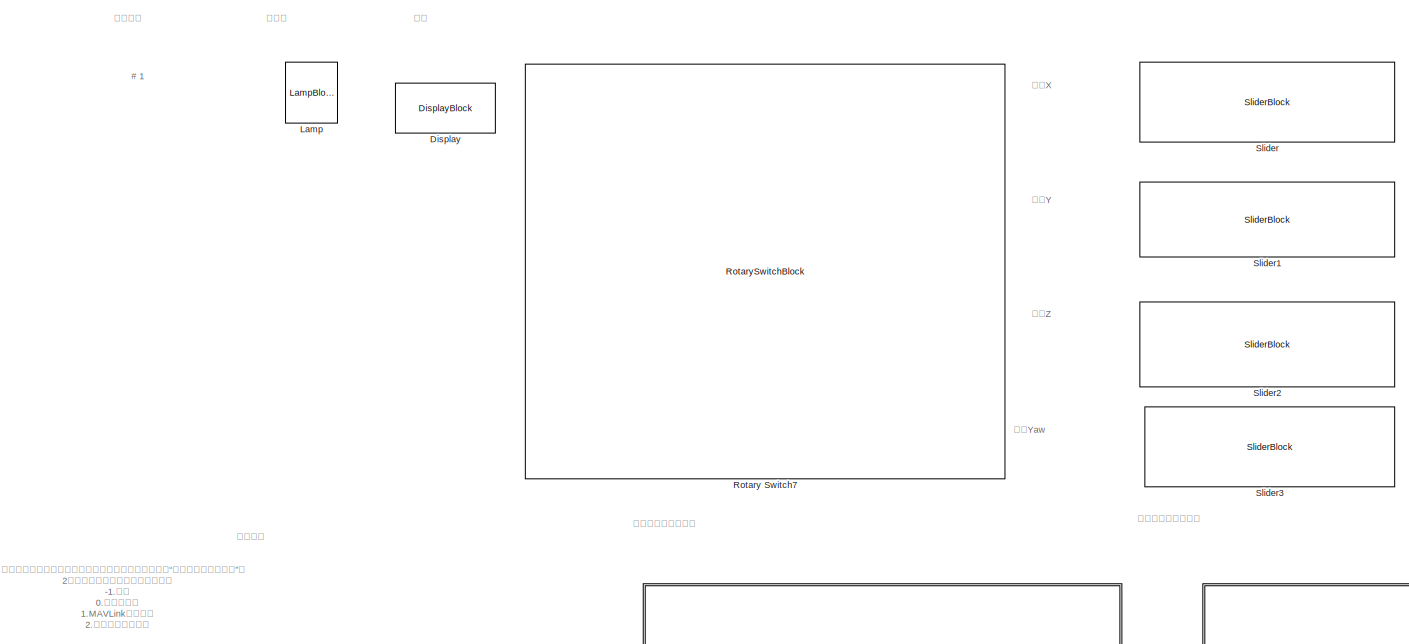
[diagram: root canvas - part 1/3, most of the canvas]
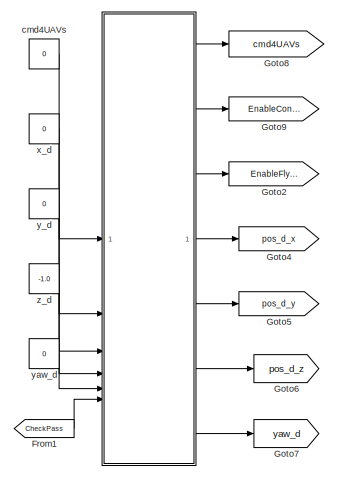
[diagram: root canvas - part 2/3, middle right region]
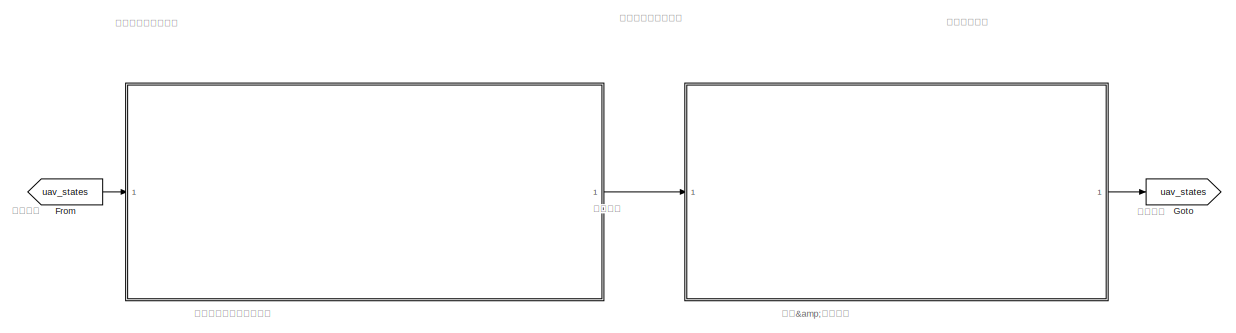
[diagram: root canvas - part 3/3, bottom center region]
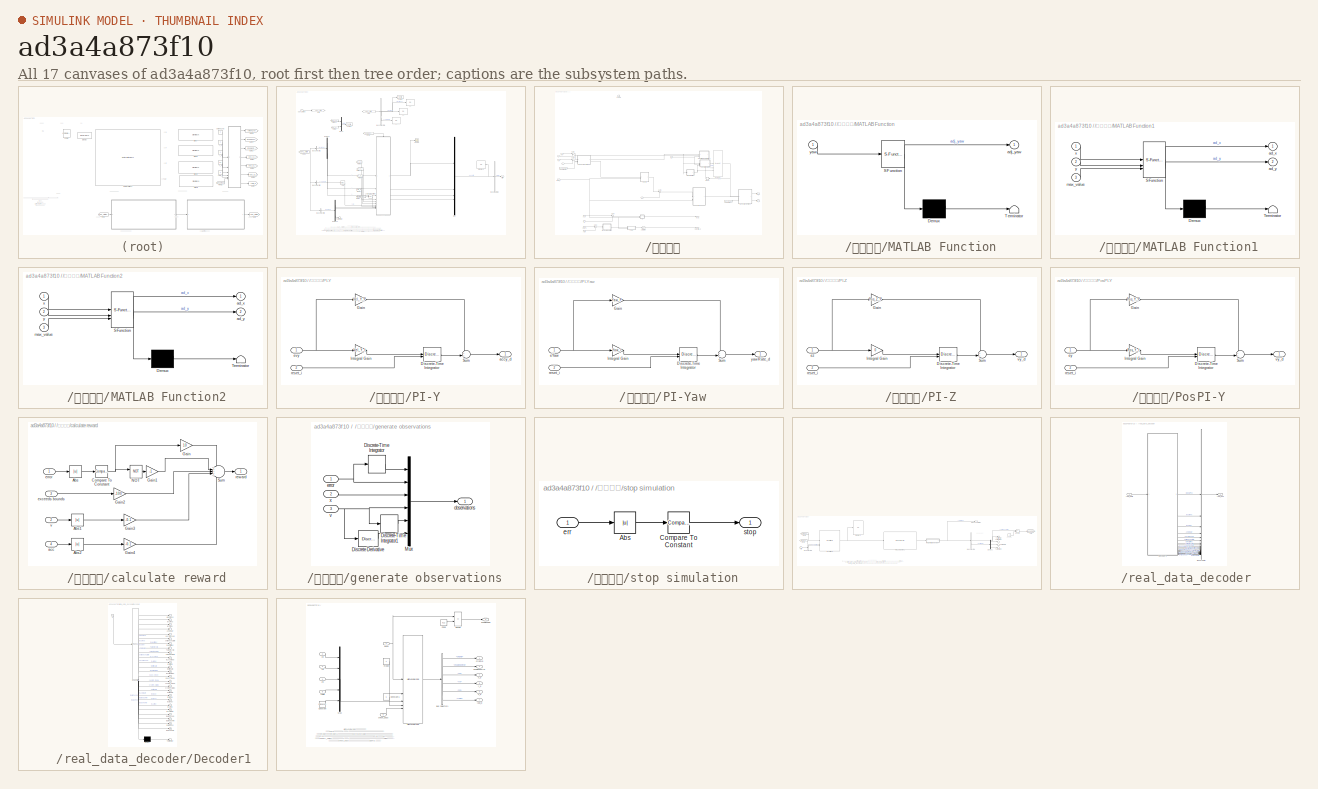
[diagram: thumbnail index - all 17 canvases of the model, root first then tree order]
MODEL slx_ad3a4a873f10
KIND model
CONFIG AbsTol = auto
CONFIG EnableMultiTasking = on
CONFIG FixedStep = fixed_step_size
CONFIG InitFcn = [filepath,name,ext] = fileparts(get_param(bdroot, 'FileName'));\nInitFileName=[name,'_init.m'];\ncd(filepath);\nopen_system(name);\n% 命令旋钮\nconstant_block_path =[name '/cmd4UAVs'];\nset_param(constant_block_path,'Value','0');\n% 滑杆位置\nconstant_block_path = [name '/x_d'];\nset_param(constant_block_path,'Value','0');\nconstant_block_path = [name '/y_d'];\nset_param(constant_block_path,'Value','0');\nconstant_bl...<+202ch>
CONFIG MaxStep = auto
CONFIG MinStep = auto
CONFIG PreLoadFcn = filepath  = fileparts(get_param(bdroot, 'FileName'))\ncd(filepath);
CONFIG RelTol = 1e-3
CONFIG SampleTimeConstraint = Unconstrained
CONFIG SolverName = ode4
CONFIG StartTime = 0.0
CONFIG StopTime = inf
BLOCK [SubSystem]  
BLOCK [SubSystem]    
  NameLocation = top
BLOCK [SubSystem]     
BLOCK [BusSelector]     /Bus Selector1
  OutputSignals = ctrlCmd,enableControl,xd,yd,zd,yawd
BLOCK [Constant]     /Constant
  Value = zeros(12,1)
BLOCK [Constant]     /Constant1
  Value = -1
BLOCK [RelationalOperator]     /Equal3
  InputSameDT = off
  Operator = ==
  OutDataTypeStr = boolean
  RndMeth = Simplest
BLOCK [Constant]     /Flying
  Value = 512
BLOCK [Reference]     /HighLevelMode  REF=pixhawk_slib_swarm/HighLevelMode
  SourceBlock = pixhawk_slib_swarm/HighLevelMode
  SourceProductName = Pixhawk Target Blocks
BLOCK [Mux]     /Mux
  DisplayOption = bar
  Inputs = 5
BLOCK [Inport]     /check_pass
  Port = 6
BLOCK [Inport]     /cmd
BLOCK [Outport]     /ctrlCmd
  VectorParamsAs1DForOutWhenUnconnected = off
BLOCK [Outport]     /enableControl
  Port = 2
  VectorParamsAs1DForOutWhenUnconnected = off
BLOCK [Outport]     /enableFlying
  Port = 3
  VectorParamsAs1DForOutWhenUnconnected = off
BLOCK [Constant]     /mode
BLOCK [Outport]     /x_d
  Port = 4
  VectorParamsAs1DForOutWhenUnconnected = off
BLOCK [Inport]     /xd
  Port = 2
BLOCK [Outport]     /y_d
  Port = 5
  VectorParamsAs1DForOutWhenUnconnected = off
BLOCK [Outport]     /yaw_d
  Port = 7
  VectorParamsAs1DForOutWhenUnconnected = off
BLOCK [Inport]     /yawd
  Port = 5
BLOCK [Inport]     /yd
  Port = 3
BLOCK [Outport]     /z_d
  Port = 6
  VectorParamsAs1DForOutWhenUnconnected = off
BLOCK [Inport]     /zd
  Port = 4
BLOCK [BusSelector]    /Bus Selector1
  OutputSignals = selfCheckState,batteryInfo
BLOCK [BusSelector]    /Bus Selector9
  OutputSignals = UAV1Ctrl
BLOCK [Demux]    /Demux1
  Outputs = 3
BLOCK [Display]    /Display5
  Decimation = 1
  Format = long
BLOCK [Outport]    /DroneyeeStates
  VectorParamsAs1DForOutWhenUnconnected = off
BLOCK [RelationalOperator]    /Equal3
  InputSameDT = off
  Operator = ==
  OutDataTypeStr = boolean
  RndMeth = Simplest
BLOCK [From]    /From3
  GotoTag = cmd4UAVs
  TagVisibility = global
BLOCK [From]    /From5
  GotoTag = EnableControl
  TagVisibility = global
BLOCK [Goto]    /Goto
  GotoTag = CheckPass
  TagVisibility = global
BLOCK [Reference]    /RealCtrl28D  REF=pixhawk_slib_swarm/RealCtrl28D
  SourceBlock = pixhawk_slib_swarm/RealCtrl28D
  SourceProductName = Pixhawk Target Blocks
BLOCK [Reference]    /RflyUdpMavlink1  REF=pixhawk_slib_swarm/RflyUdpMavlink
  SourceBlock = pixhawk_slib_swarm/RflyUdpMavlink
  SourceProductName = Pixhawk Target Blocks
  SourceType = RflyUdpReal API
BLOCK [Terminator]    /Terminator
BLOCK [Terminator]    /Terminator1
BLOCK [Terminator]    /Terminator2
BLOCK [Terminator]    /Terminator3
BLOCK [Inport]    /ctrls
BLOCK [SubSystem]    /real_data_decoder
  NameLocation = top
BLOCK [BusCreator]    /real_data_decoder/Bus Creator
  DisplayOption = bar
  InheritFromInputs = on
  Inputs = 25
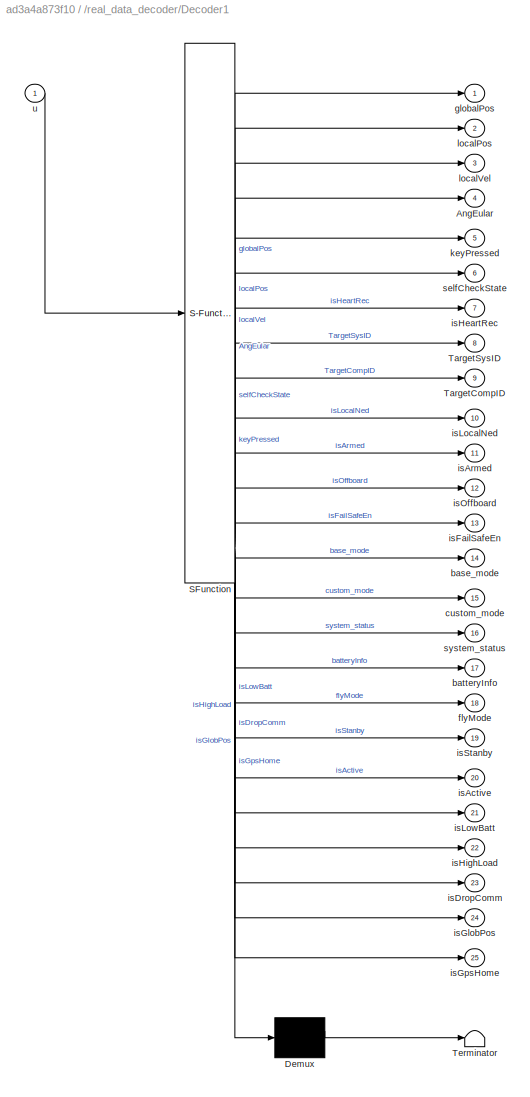
BLOCK [SubSystem]    /real_data_decoder/Decoder1
  ErrorFcn = Stateflow.Translate.translate
  PermitHierarchicalResolution = ExplicitOnly
  SFBlockType = MATLAB Function
  TreatAsAtomicUnit = on
BLOCK [Demux]    /real_data_decoder/Decoder1/ Demux 
  Outputs = 1
BLOCK [S-Function]    /real_data_decoder/Decoder1/ SFunction 
  EnableBusSupport = on
  FunctionName = sf_sfun
  PortCounts = [1 26]
  SFcnIsStateOwnerBlock = off
  SFunctionDeploymentMode = off
  Tag = Stateflow S-Function 1
BLOCK [Terminator]    /real_data_decoder/Decoder1/ Terminator 
BLOCK [Outport]    /real_data_decoder/Decoder1/AngEular
  Port = 4
  VectorParamsAs1DForOutWhenUnconnected = off
BLOCK [Outport]    /real_data_decoder/Decoder1/TargetCompID
  Port = 9
  VectorParamsAs1DForOutWhenUnconnected = off
BLOCK [Outport]    /real_data_decoder/Decoder1/TargetSysID
  Port = 8
  VectorParamsAs1DForOutWhenUnconnected = off
BLOCK [Outport]    /real_data_decoder/Decoder1/base_mode
  Port = 14
  VectorParamsAs1DForOutWhenUnconnected = off
BLOCK [Outport]    /real_data_decoder/Decoder1/batteryInfo
  Port = 17
  VectorParamsAs1DForOutWhenUnconnected = off
BLOCK [Outport]    /real_data_decoder/Decoder1/custom_mode
  Port = 15
  VectorParamsAs1DForOutWhenUnconnected = off
BLOCK [Outport]    /real_data_decoder/Decoder1/flyMode
  Port = 18
  VectorParamsAs1DForOutWhenUnconnected = off
BLOCK [Outport]    /real_data_decoder/Decoder1/globalPos
  VectorParamsAs1DForOutWhenUnconnected = off
BLOCK [Outport]    /real_data_decoder/Decoder1/isActive
  Port = 20
  VectorParamsAs1DForOutWhenUnconnected = off
BLOCK [Outport]    /real_data_decoder/Decoder1/isArmed
  Port = 11
  VectorParamsAs1DForOutWhenUnconnected = off
BLOCK [Outport]    /real_data_decoder/Decoder1/isDropComm
  Port = 23
  VectorParamsAs1DForOutWhenUnconnected = off
BLOCK [Outport]    /real_data_decoder/Decoder1/isFailSafeEn
  Port = 13
  VectorParamsAs1DForOutWhenUnconnected = off
BLOCK [Outport]    /real_data_decoder/Decoder1/isGlobPos
  Port = 24
  VectorParamsAs1DForOutWhenUnconnected = off
BLOCK [Outport]    /real_data_decoder/Decoder1/isGpsHome
  Port = 25
  VectorParamsAs1DForOutWhenUnconnected = off
BLOCK [Outport]    /real_data_decoder/Decoder1/isHeartRec
  Port = 7
  VectorParamsAs1DForOutWhenUnconnected = off
BLOCK [Outport]    /real_data_decoder/Decoder1/isHighLoad
  Port = 22
  VectorParamsAs1DForOutWhenUnconnected = off
BLOCK [Outport]    /real_data_decoder/Decoder1/isLocalNed
  Port = 10
  VectorParamsAs1DForOutWhenUnconnected = off
BLOCK [Outport]    /real_data_decoder/Decoder1/isLowBatt
  Port = 21
  VectorParamsAs1DForOutWhenUnconnected = off
BLOCK [Outport]    /real_data_decoder/Decoder1/isOffboard
  Port = 12
  VectorParamsAs1DForOutWhenUnconnected = off
BLOCK [Outport]    /real_data_decoder/Decoder1/isStanby
  Port = 19
  VectorParamsAs1DForOutWhenUnconnected = off
BLOCK [Outport]    /real_data_decoder/Decoder1/keyPressed
  Port = 5
  VectorParamsAs1DForOutWhenUnconnected = off
BLOCK [Outport]    /real_data_decoder/Decoder1/localPos
  Port = 2
  VectorParamsAs1DForOutWhenUnconnected = off
BLOCK [Outport]    /real_data_decoder/Decoder1/localVel
  Port = 3
  VectorParamsAs1DForOutWhenUnconnected = off
BLOCK [Outport]    /real_data_decoder/Decoder1/selfCheckState
  Port = 6
  VectorParamsAs1DForOutWhenUnconnected = off
BLOCK [Outport]    /real_data_decoder/Decoder1/system_status
  Port = 16
  VectorParamsAs1DForOutWhenUnconnected = off
BLOCK [Inport]    /real_data_decoder/Decoder1/u
BLOCK [Outport]    /real_data_decoder/real_bus
  VectorParamsAs1DForOutWhenUnconnected = off
BLOCK [Inport]    /real_data_decoder/real_data
BLOCK [Constant]    /校验通过标志
  Value = 5
BLOCK [BusCreator]  /Bus Creator50
  DisplayOption = bar
  InheritFromInputs = on
  Inputs = 1
BLOCK [BusSelector]  /Bus Selector1
  OutputSignals = localPos
BLOCK [BusSelector]  /Bus Selector2
  OutputSignals = AngEular
BLOCK [BusSelector]  /Bus Selector3
  OutputSignals = localVel
BLOCK [BusSelector]  /Bus Selector9
  OutputSignals = localPos,localVel,AngEular
BLOCK [Demux]  /Demux1
  Outputs = 3
BLOCK [Demux]  /Demux3
  Outputs = 3
BLOCK [Display]  /Display3
  Decimation = 1
  NameLocation = top
BLOCK [From]  /From
  GotoTag = uav1_state
BLOCK [From]  /From1
  GotoTag = yaw_d
  TagVisibility = global
BLOCK [From]  /From14
  GotoTag = pos_d_x
  TagVisibility = global
BLOCK [From]  /From2
  GotoTag = EnableControl
  TagVisibility = global
BLOCK [From]  /From3
  GotoTag = uav1_state
BLOCK [From]  /From4
  GotoTag = pos_d_z
  TagVisibility = global
BLOCK [From]  /From5
  GotoTag = EnableControl
  TagVisibility = global
BLOCK [From]  /From6
  GotoTag = pos_d_x
  TagVisibility = global
BLOCK [From]  /From7
  GotoTag = pos_d_y
  TagVisibility = global
BLOCK [From]  /From8
  GotoTag = pos_d_y
  NameLocation = left
  TagVisibility = global
BLOCK [Goto]  /Goto
  GotoTag = uav1_state
BLOCK [Logic]  /Logical Operator1
  AllPortsSameDT = off
  Operator = NOT
  OutDataTypeStr = boolean
BLOCK [Mux]  /Mux
  DisplayOption = bar
BLOCK [Mux]  /Mux2
  DisplayOption = bar
  Inputs = 2
BLOCK [Scope]  /Scope
  Floating = off
  NumInputPorts = 1
  ScopeSpecificationString = Simulink.scopes.TimeScopeBlockCfg('CurrentConfiguration', extmgr.ConfigurationSet(extmgr.Configuration('Core','General UI',true),extmgr.Configuration('Core','Source UI',true),extmgr.Configuration('Sources','WiredSimulink',true),extmgr.Configuration('Visuals','Time Domain',true,'SerializedDisplays',{struct('MinYLimReal','-0.05356','MaxYLimReal','0.01785','YLabelReal','','MinYLimMag','0.00000','MaxY...<+1448ch>
BLOCK [Terminator]  /Terminator
BLOCK [ToFile]  /To File1
  Filename = pos_d.mat
  SaveFormat = Timeseries
BLOCK [ToFile]  /To File2
  Filename = pos.mat
  SaveFormat = Timeseries
BLOCK [Outport]  /ctrls
  VectorParamsAs1DForOutWhenUnconnected = off
BLOCK [Inport]  /uav_states
BLOCK [Selector]  /yaw
  IndexOptions = Index vector (dialog)
  Indices = [3]
  InputPortWidth = 3
  OutputSizes = 1
BLOCK [Display]  /位置
  Decimation = 1
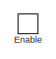
[diagram:  /位置控制 - part 1/4, top left region]
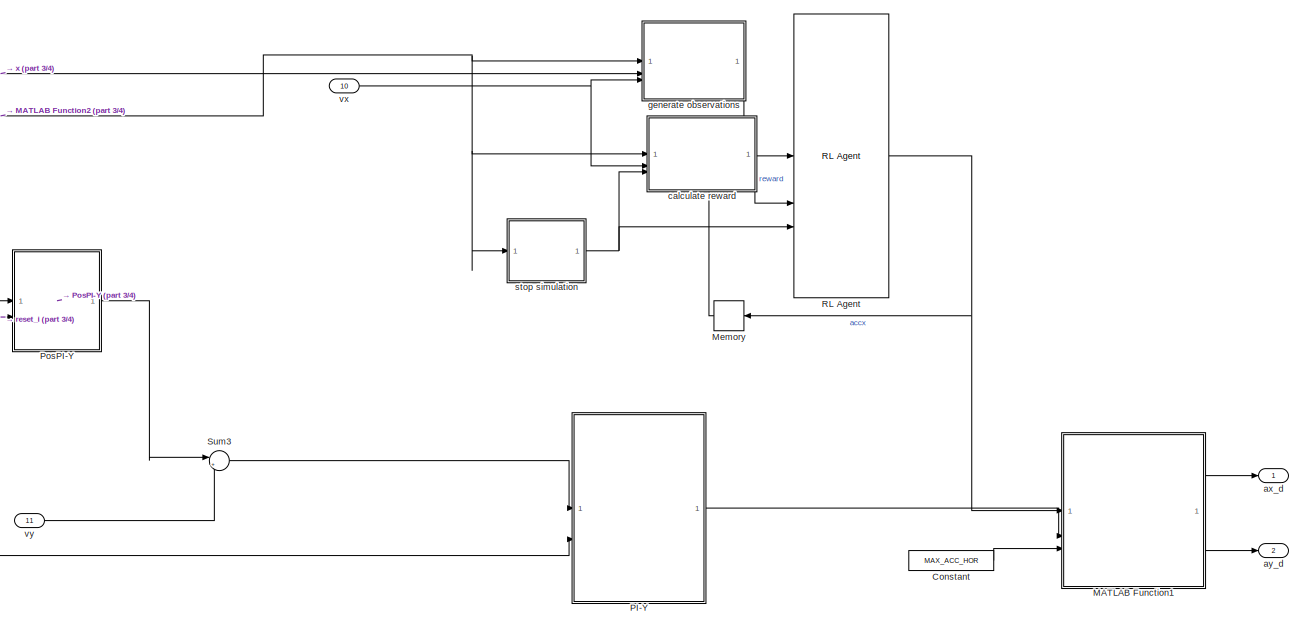
[diagram:  /位置控制 - part 2/4, middle right region]
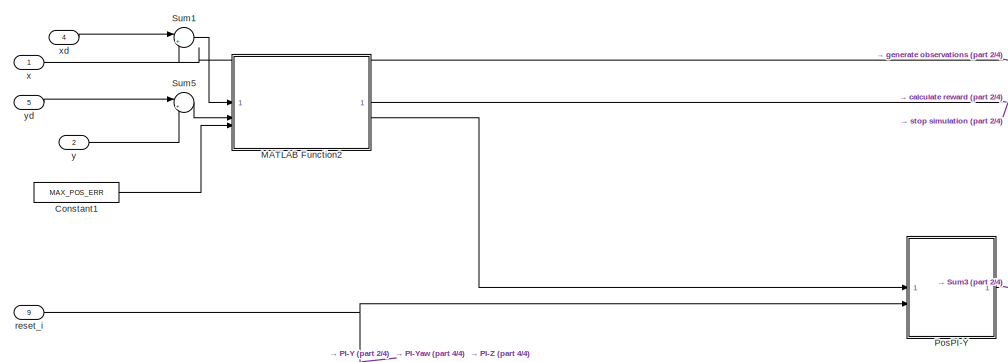
[diagram:  /位置控制 - part 3/4, middle left region]
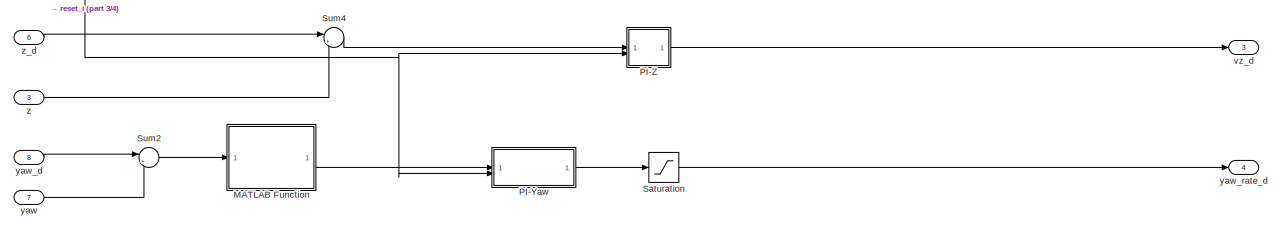
[diagram:  /位置控制 - part 4/4, bottom center region]
BLOCK [SubSystem]  /位置控制
BLOCK [Constant]  /位置控制/Constant
  Value = MAX_ACC_HOR
BLOCK [Constant]  /位置控制/Constant1
  Value = MAX_POS_ERR
BLOCK [EnablePort]  /位置控制/Enable
BLOCK [SubSystem]  /位置控制/MATLAB Function
  ErrorFcn = Stateflow.Translate.translate
  PermitHierarchicalResolution = ExplicitOnly
  SFBlockType = MATLAB Function
  TreatAsAtomicUnit = on
BLOCK [Demux]  /位置控制/MATLAB Function/ Demux 
  Outputs = 1
BLOCK [S-Function]  /位置控制/MATLAB Function/ SFunction 
  EnableBusSupport = on
  FunctionName = sf_sfun
  PortCounts = [1 2]
  SFcnIsStateOwnerBlock = off
  SFunctionDeploymentMode = off
  Tag = Stateflow S-Function 2
BLOCK [Terminator]  /位置控制/MATLAB Function/ Terminator 
BLOCK [Outport]  /位置控制/MATLAB Function/adj_yaw
BLOCK [Inport]  /位置控制/MATLAB Function/yaw
BLOCK [SubSystem]  /位置控制/MATLAB Function1
  ErrorFcn = Stateflow.Translate.translate
  PermitHierarchicalResolution = ExplicitOnly
  SFBlockType = MATLAB Function
  TreatAsAtomicUnit = on
BLOCK [Demux]  /位置控制/MATLAB Function1/ Demux 
  Outputs = 1
BLOCK [S-Function]  /位置控制/MATLAB Function1/ SFunction 
  EnableBusSupport = on
  FunctionName = sf_sfun
  PortCounts = [3 3]
  SFcnIsStateOwnerBlock = off
  SFunctionDeploymentMode = off
  Tag = Stateflow S-Function 4
BLOCK [Terminator]  /位置控制/MATLAB Function1/ Terminator 
BLOCK [Outport]  /位置控制/MATLAB Function1/ad_x
BLOCK [Outport]  /位置控制/MATLAB Function1/ad_y
  Port = 2
BLOCK [Inport]  /位置控制/MATLAB Function1/max_value
  Port = 3
BLOCK [Inport]  /位置控制/MATLAB Function1/x
BLOCK [Inport]  /位置控制/MATLAB Function1/y
  Port = 2
BLOCK [SubSystem]  /位置控制/MATLAB Function2
  ErrorFcn = Stateflow.Translate.translate
  PermitHierarchicalResolution = ExplicitOnly
  SFBlockType = MATLAB Function
  TreatAsAtomicUnit = on
BLOCK [Demux]  /位置控制/MATLAB Function2/ Demux 
  Outputs = 1
BLOCK [S-Function]  /位置控制/MATLAB Function2/ SFunction 
  EnableBusSupport = on
  FunctionName = sf_sfun
  PortCounts = [3 3]
  SFcnIsStateOwnerBlock = off
  SFunctionDeploymentMode = off
  Tag = Stateflow S-Function 9
BLOCK [Terminator]  /位置控制/MATLAB Function2/ Terminator 
BLOCK [Outport]  /位置控制/MATLAB Function2/ad_x
BLOCK [Outport]  /位置控制/MATLAB Function2/ad_y
  Port = 2
BLOCK [Inport]  /位置控制/MATLAB Function2/max_value
  Port = 3
BLOCK [Inport]  /位置控制/MATLAB Function2/x
BLOCK [Inport]  /位置控制/MATLAB Function2/y
  Port = 2
BLOCK [Memory]  /位置控制/Memory
  NameLocation = top
BLOCK [SubSystem]  /位置控制/PI-Y
BLOCK [DiscreteIntegrator]  /位置控制/PI-Y/Discrete-Time Integrator
  ExternalReset = level
  ICPrevOutput = DiscIntNeverNeededParam
  ICPrevScaledInput = DiscIntNeverNeededParam
  InitialConditionSetting = Auto
  LimitOutput = on
  LowerSaturationLimit = -Saturation_I_ah
  SampleTime = -1
  UpperSaturationLimit = Saturation_I_ah
BLOCK [Gain]  /位置控制/PI-Y/Gain
  Gain = Vel_Y_P
BLOCK [Gain]  /位置控制/PI-Y/Integral Gain
  DisableCoverage = on
  Gain = Vel_Y_I
BLOCK [Sum]  /位置控制/PI-Y/Sum
  Inputs = ++|
BLOCK [Outport]  /位置控制/PI-Y/accy_d
  InitialOutput = 0
  VectorParamsAs1DForOutWhenUnconnected = off
BLOCK [Inport]  /位置控制/PI-Y/evy
BLOCK [Inport]  /位置控制/PI-Y/reset_i
  Port = 2
BLOCK [SubSystem]  /位置控制/PI-Yaw
BLOCK [DiscreteIntegrator]  /位置控制/PI-Yaw/Discrete-Time Integrator
  ExternalReset = level
  ICPrevOutput = DiscIntNeverNeededParam
  ICPrevScaledInput = DiscIntNeverNeededParam
  InitialConditionSetting = Auto
  LimitOutput = on
  LowerSaturationLimit = -Saturation_I_ah
  SampleTime = -1
  UpperSaturationLimit = Saturation_I_ah
BLOCK [Gain]  /位置控制/PI-Yaw/Gain
  Gain = Yaw_P
BLOCK [Gain]  /位置控制/PI-Yaw/Integral Gain
  DisableCoverage = on
  Gain = Yaw_I
BLOCK [Sum]  /位置控制/PI-Yaw/Sum
  Inputs = ++|
BLOCK [Inport]  /位置控制/PI-Yaw/eYaw
BLOCK [Inport]  /位置控制/PI-Yaw/reset_i
  Port = 2
BLOCK [Outport]  /位置控制/PI-Yaw/yawRate_d
  InitialOutput = 0
  VectorParamsAs1DForOutWhenUnconnected = off
BLOCK [SubSystem]  /位置控制/PI-Z
BLOCK [DiscreteIntegrator]  /位置控制/PI-Z/Discrete-Time Integrator
  ExternalReset = level
  ICPrevOutput = DiscIntNeverNeededParam
  ICPrevScaledInput = DiscIntNeverNeededParam
  InitialConditionSetting = Auto
  LimitOutput = on
  LowerSaturationLimit = -Saturation_I_ah
  SampleTime = -1
  UpperSaturationLimit = Saturation_I_ah
BLOCK [Gain]  /位置控制/PI-Z/Gain
  Gain = Pos_Z_P
BLOCK [Gain]  /位置控制/PI-Z/Integral Gain
  DisableCoverage = on
  Gain = 0
BLOCK [Sum]  /位置控制/PI-Z/Sum
  Inputs = ++|
BLOCK [Inport]  /位置控制/PI-Z/ez
BLOCK [Inport]  /位置控制/PI-Z/reset_i
  Port = 2
BLOCK [Outport]  /位置控制/PI-Z/vy_d
  InitialOutput = 0
  VectorParamsAs1DForOutWhenUnconnected = off
BLOCK [SubSystem]  /位置控制/PosPI-Y
BLOCK [DiscreteIntegrator]  /位置控制/PosPI-Y/Discrete-Time Integrator
  ExternalReset = level
  ICPrevOutput = DiscIntNeverNeededParam
  ICPrevScaledInput = DiscIntNeverNeededParam
  InitialConditionSetting = Auto
  LimitOutput = on
  LowerSaturationLimit = -Saturation_I_ah
  SampleTime = -1
  UpperSaturationLimit = Saturation_I_ah
BLOCK [Gain]  /位置控制/PosPI-Y/Gain
  Gain = Pos_Y_P
BLOCK [Gain]  /位置控制/PosPI-Y/Integral Gain
  DisableCoverage = on
  Gain = Pos_Y_I
BLOCK [Sum]  /位置控制/PosPI-Y/Sum
  Inputs = ++|
BLOCK [Inport]  /位置控制/PosPI-Y/ey
BLOCK [Inport]  /位置控制/PosPI-Y/reset_i
  Port = 2
BLOCK [Outport]  /位置控制/PosPI-Y/vy_d
  InitialOutput = 0
  VectorParamsAs1DForOutWhenUnconnected = off
BLOCK [Reference]  /位置控制/RL Agent  REF=rllib/RL Agent
  SourceBlock = rllib/RL Agent
  SourceType = RL Agent
BLOCK [Saturate]  /位置控制/Saturation
  LowerLimit = -MAX_YAW_RATE
  UpperLimit = MAX_YAW_RATE
BLOCK [Sum]  /位置控制/Sum1
  Inputs = |+-
BLOCK [Sum]  /位置控制/Sum2
  Inputs = |+-
BLOCK [Sum]  /位置控制/Sum3
  Inputs = |+-
BLOCK [Sum]  /位置控制/Sum4
  Inputs = |+-
BLOCK [Sum]  /位置控制/Sum5
  Inputs = |+-
BLOCK [Outport]  /位置控制/ax_d
  VectorParamsAs1DForOutWhenUnconnected = off
BLOCK [Outport]  /位置控制/ay_d
  Port = 2
  VectorParamsAs1DForOutWhenUnconnected = off
BLOCK [SubSystem]  /位置控制/calculate reward
  PortSchema = {"entries":[{"content":{"sides":[{"content":{"connectorIds":["In1","In2","In3"]},"type":"ConnectorPlacement.EquallySpacedRectSide","uuid":"a6831b4c-c5e4-4b81-8e40-7fc4b7dad633"},{"content":{"connectorIds":["Out1"],"side":"RIGHT"},"type":"ConnectorPlacement.EquallySpacedRectSide","uuid":"8e922aec-ef45-4070-9445-bf1f36bf8a17"},{"content":{"connectorIds":[],"side":"TOP"},"type":"ConnectorPlacement.Eq...<+401ch>
BLOCK [Abs]  /位置控制/calculate reward/Abs
  SaturateOnIntegerOverflow = off
BLOCK [Abs]  /位置控制/calculate reward/Abs1
  SaturateOnIntegerOverflow = off
  ZeroCross = off
BLOCK [Abs]  /位置控制/calculate reward/Abs2
  SaturateOnIntegerOverflow = off
  ZeroCross = off
BLOCK [Reference]  /位置控制/calculate reward/Compare To Constant  REF=simulink/Logic and Bit
Operations/Compare
To Constant
  SourceBlock = simulink/Logic and Bit\nOperations/Compare\nTo Constant
  SourceType = Compare To Constant
BLOCK [Gain]  /位置控制/calculate reward/Gain
  Gain = 10
BLOCK [Gain]  /位置控制/calculate reward/Gain1
  Gain = -1
BLOCK [Gain]  /位置控制/calculate reward/Gain2
  Gain = -100
BLOCK [Gain]  /位置控制/calculate reward/Gain3
  Gain = -0.1
BLOCK [Gain]  /位置控制/calculate reward/Gain4
  Gain = -0.1
BLOCK [Logic]  /位置控制/calculate reward/NOT
  AllPortsSameDT = off
  IconShape = distinctive
  Operator = NOT
  OutDataTypeStr = boolean
BLOCK [Sum]  /位置控制/calculate reward/Sum
  Inputs = +++++
  OutDataTypeStr = double
BLOCK [Inport]  /位置控制/calculate reward/acc
  Port = 4
BLOCK [Inport]  /位置控制/calculate reward/error
BLOCK [Inport]  /位置控制/calculate reward/exceeds bounds
  Port = 3
BLOCK [Outport]  /位置控制/calculate reward/reward
  VectorParamsAs1DForOutWhenUnconnected = off
BLOCK [Inport]  /位置控制/calculate reward/v
  Port = 2
BLOCK [SubSystem]  /位置控制/generate observations
BLOCK [Reference]  /位置控制/generate observations/Discrete Derivative  REF=simulink/Discrete/Discrete Derivative
  SourceBlock = simulink/Discrete/Discrete Derivative
  SourceType = Discrete Derivative
BLOCK [DiscreteIntegrator]  /位置控制/generate observations/Discrete-Time Integrator
  ICPrevOutput = DiscIntNeverNeededParam
  ICPrevScaledInput = DiscIntNeverNeededParam
  InitialConditionSetting = Auto
  SampleTime = Ts
BLOCK [DiscreteIntegrator]  /位置控制/generate observations/Discrete-Time Integrator1
  ICPrevOutput = DiscIntNeverNeededParam
  ICPrevScaledInput = DiscIntNeverNeededParam
  InitialConditionSetting = Auto
  SampleTime = Ts
  gainval = 0.1
BLOCK [Mux]  /位置控制/generate observations/Mux
  DisplayOption = bar
  Inputs = 6
BLOCK [Inport]  /位置控制/generate observations/error
BLOCK [Outport]  /位置控制/generate observations/observations
  VectorParamsAs1DForOutWhenUnconnected = off
BLOCK [Inport]  /位置控制/generate observations/v
  Port = 3
BLOCK [Inport]  /位置控制/generate observations/x
  Port = 2
BLOCK [Inport]  /位置控制/reset_i
  Port = 9
BLOCK [SubSystem]  /位置控制/stop simulation
BLOCK [Abs]  /位置控制/stop simulation/Abs
  SaturateOnIntegerOverflow = off
BLOCK [Reference]  /位置控制/stop simulation/Compare To Constant  REF=simulink/Logic and Bit
Operations/Compare
To Constant
  SourceBlock = simulink/Logic and Bit\nOperations/Compare\nTo Constant
  SourceType = Compare To Constant
BLOCK [Inport]  /位置控制/stop simulation/err
BLOCK [Outport]  /位置控制/stop simulation/stop
  VectorParamsAs1DForOutWhenUnconnected = off
BLOCK [Inport]  /位置控制/vx
  Port = 10
BLOCK [Inport]  /位置控制/vy
  Port = 11
BLOCK [Outport]  /位置控制/vz_d
  Port = 3
  VectorParamsAs1DForOutWhenUnconnected = off
BLOCK [Inport]  /位置控制/x
BLOCK [Inport]  /位置控制/xd
  Port = 4
BLOCK [Inport]  /位置控制/y
  Port = 2
BLOCK [Inport]  /位置控制/yaw
  Port = 7
BLOCK [Inport]  /位置控制/yaw_d
  Port = 8
BLOCK [Outport]  /位置控制/yaw_rate_d
  Port = 4
  VectorParamsAs1DForOutWhenUnconnected = off
BLOCK [Inport]  /位置控制/yd
  Port = 5
BLOCK [Inport]  /位置控制/z
  Port = 3
BLOCK [Inport]  /位置控制/z_d
  Port = 6
BLOCK [Display]  /姿态
  Decimation = 1
BLOCK [Display]  /速度
  Decimation = 1
BLOCK [DisplayBlock] Display
  Format = long
  LabelPosition = Hide
BLOCK [From] From
  GotoTag = uav_states
  NameLocation = top
BLOCK [From] From1
  GotoTag = CheckPass
  TagVisibility = global
BLOCK [Goto] Goto
  GotoTag = uav_states
BLOCK [Goto] Goto2
  GotoTag = EnableFlying
  TagVisibility = global
BLOCK [Goto] Goto4
  GotoTag = pos_d_x
  TagVisibility = global
BLOCK [Goto] Goto5
  GotoTag = pos_d_y
  TagVisibility = global
BLOCK [Goto] Goto6
  GotoTag = pos_d_z
  TagVisibility = global
BLOCK [Goto] Goto7
  GotoTag = yaw_d
  TagVisibility = global
BLOCK [Goto] Goto8
  GotoTag = cmd4UAVs
  TagVisibility = global
BLOCK [Goto] Goto9
  GotoTag = EnableControl
  TagVisibility = global
BLOCK [LampBlock] Lamp
BLOCK [RotarySwitchBlock] Rotary Switch7
  LabelPosition = Hide
BLOCK [SliderBlock] Slider
  ScaleMax = 1.5
  ScaleMin = -1.5
  TickInterval = 0.5
BLOCK [SliderBlock] Slider1
  ScaleMax = 1.5
  ScaleMin = -1.5
  TickInterval = 0.5
BLOCK [SliderBlock] Slider2
  ScaleMax = 0
  ScaleMin = -2
  TickInterval = 0.5
BLOCK [SliderBlock] Slider3
  ScaleMax = 3.1
  ScaleMin = -3.1
  TickInterval = 1
BLOCK [Constant] cmd4UAVs
  Value = 0
BLOCK [Constant] x_d
  Value = 0
BLOCK [Constant] y_d
  Value = 0
BLOCK [Constant] yaw_d
  Value = 0
BLOCK [Constant] z_d
  Value = -1.0
ANNOTATION (root): 无人机模式切换模块
ANNOTATION (root): 1、该模型点击运行启动后，等待状态灯变绿，再进行操作“无人机模式切换模块”。 2、飞机状态灯各颜色表示含义为： -1.失败 0.开始初始化 1.MAVLink通信正常 2.飞机位置信息正常 3.可进Offboard模式 4.可进行解锁 5.校验通过 3、实飞过程中当飞机电量低于20%时，可能无法完成完整飞行，需对飞机电池进行充电。 4、起飞/降落前请将控制位置的滑杆恢复默认设置，高度默认为-1.其余默认为0。
ANNOTATION (root): 期望X
ANNOTATION (root): 期望Y
ANNOTATION (root): 期望Yaw
ANNOTATION (root): 期望Z
ANNOTATION (root): 控制指令
ANNOTATION (root): 飞机状态
ANNOTATION (root): 无人机位姿切换模块
ANNOTATION (root): 无人机集群控制算法模块
ANNOTATION (root): 模式控制模块
ANNOTATION (root): 状态灯
ANNOTATION (root): 电量
ANNOTATION (root): 飞机&动捕接口
ANNOTATION (root): 飞机编号
ANNOTATION (root): 注意事项
ANNOTATION (root): # 1
ANNOTATION  : 分布式控制算法模块介绍: 1、从输入总线uav_states获取数据，通过“Bus Selector”模块，可以从总线中将信号提取出来。 2、各个飞机的状态分别传送给相应的控制器，一定要严格对应，如果状态信息与控制器的对应关系出现问题，那么就会导致乱飞。 3、多机控制时每个飞机需要获取自身的初始位置，以此来进行初始编队位置。获取初始位置的时机是等待校验通过CheckPass。 4、EnableControl来自“模式控制”模块的输出，EnableControl未使能时控制器不会运行，用户写的算法一定要受EnableControl控制。 5、最终的输出要汇总到输出控制总线，需要特别注意输出的名字命名，要与“飞机&动捕接口”模块解析总线数据对应上。
ANNOTATION    : 仿真通信模块介绍: 1、通信模块使用三个关键的模块，Offboard PAV接口模块从“无人机集群控制算法”模块控制量，按RflySim平台的高效通信协议封装后传递给RflyUdpMavlink模块。RflyUdpMavlink模块负责底层通信，收到的数据需要经过real_data_decoder解析。“Offboard PVA”，“RflyUdpMavlink”，“real_data_decoder”在集群动捕系列实验中总是一起出现的。 2、“Offboard PVA”和“real_data_decoder”是每个飞机对应一个；而“RflyUdpMavlink”在内部配置飞机数量，也就是多个飞机时也只需要一个。 3、“real_data_decoder”解析后的数据会与模型主界面的状态灯和电量信息关联，多机时需要注意对应关系是否正确。
ANNOTATION    : 读取自检状态数据
ANNOTATION     : HighLevelMode模式控制模块输入介绍: 指令输入cmd 。指令输入必须通过“模式切换”模块生成。该模块会对输入的指令进行进一步加工，以使得系统更加稳定可靠。 控制模式mode 。当前选择mode=1表示，处于位置模式，输出总线中 xd 、 yd 、 zd 和 yawd 有效。若要使用其它模式，需进入源码内部仔细熟悉其机理。 控制输入ctrls 。在集群控制中一般期望控制指令尽可能的简短，所以一般情况使用前四位作为输入。但考虑到后期的可扩展性， ctrls 总共预留了16维，可支持复杂的控制。 起飞高度takeoff_height。 起飞高度是指当用户将“模式切换”模块旋转到起飞时，飞机将自动起飞到的高度。该高度以向下为正，与无人机的 NED 坐标系兼容。在室内场景下，建议默认高度为1m，即在 MATLAB 中设置数值为-1。 飞机状态校验是否通过check_pass 。 所有飞机...<+113ch>
LINE     /Bus Selector1:1 ->     /ctrlCmd:1
LINE     /Bus Selector1:2 ->     /enableControl:1
LINE     /Bus Selector1:3 ->     /x_d:1
LINE     /Bus Selector1:4 ->     /y_d:1
LINE     /Bus Selector1:5 ->     /z_d:1
LINE     /Bus Selector1:6 ->     /yaw_d:1
LINE     /Constant1:1 ->     /HighLevelMode:4
LINE     /Constant:1 ->     /Mux:5
LINE     /Equal3:1 ->     /enableFlying:1
LINE     /Flying:1 ->     /Equal3:2
LINE     /HighLevelMode:1 ->     /Bus Selector1:1
LINE     /Mux:1 ->     /HighLevelMode:3
LINE     /check_pass:1 ->     /HighLevelMode:5
NET     /cmd:1 ->     /Equal3:1,     /HighLevelMode:1
LINE     /mode:1 ->     /HighLevelMode:2
LINE     /xd:1 ->     /Mux:1
LINE     /yawd:1 ->     /Mux:4
LINE     /yd:1 ->     /Mux:2
LINE     /zd:1 ->     /Mux:3
LINE     :1 -> Goto8:1
LINE     :2 -> Goto9:1
LINE     :3 -> Goto2:1
LINE     :4 -> Goto4:1
LINE     :5 -> Goto5:1
LINE     :6 -> Goto6:1
LINE     :7 -> Goto7:1
NET    /Bus Selector1:1 ->    /Equal3:1,    /Terminator:1
LINE    /Bus Selector1:2 ->    /Demux1:1
LINE    /Bus Selector9:1 ->    /RealCtrl28D:3
LINE    /Demux1:1 ->    /Terminator1:1
LINE    /Demux1:2 ->    /Terminator2:1
LINE    /Demux1:3 ->    /Terminator3:1
LINE    /Equal3:1 ->    /Goto:1
LINE    /From3:1 ->    /RealCtrl28D:2
LINE    /From5:1 ->    /RealCtrl28D:1
NET    /RealCtrl28D:1 ->    /Display5:1,    /RflyUdpMavlink1:1
LINE    /RflyUdpMavlink1:1 ->    /real_data_decoder:1
LINE    /ctrls:1 ->    /Bus Selector9:1
LINE    /real_data_decoder/Bus Creator:1 ->    /real_data_decoder/real_bus:1
LINE    /real_data_decoder/Decoder1:1 ->    /real_data_decoder/Bus Creator:1
LINE    /real_data_decoder/Decoder1:10 ->    /real_data_decoder/Bus Creator:10
LINE    /real_data_decoder/Decoder1:11 ->    /real_data_decoder/Bus Creator:11
LINE    /real_data_decoder/Decoder1:12 ->    /real_data_decoder/Bus Creator:12
LINE    /real_data_decoder/Decoder1:13 ->    /real_data_decoder/Bus Creator:13
LINE    /real_data_decoder/Decoder1:14 ->    /real_data_decoder/Bus Creator:14
LINE    /real_data_decoder/Decoder1:15 ->    /real_data_decoder/Bus Creator:15
LINE    /real_data_decoder/Decoder1:16 ->    /real_data_decoder/Bus Creator:16
LINE    /real_data_decoder/Decoder1:17 ->    /real_data_decoder/Bus Creator:17
LINE    /real_data_decoder/Decoder1:18 ->    /real_data_decoder/Bus Creator:18
LINE    /real_data_decoder/Decoder1:19 ->    /real_data_decoder/Bus Creator:19
LINE    /real_data_decoder/Decoder1:2 ->    /real_data_decoder/Bus Creator:2
LINE    /real_data_decoder/Decoder1:20 ->    /real_data_decoder/Bus Creator:20
LINE    /real_data_decoder/Decoder1:21 ->    /real_data_decoder/Bus Creator:21
LINE    /real_data_decoder/Decoder1:22 ->    /real_data_decoder/Bus Creator:22
LINE    /real_data_decoder/Decoder1:23 ->    /real_data_decoder/Bus Creator:23
LINE    /real_data_decoder/Decoder1:24 ->    /real_data_decoder/Bus Creator:24
LINE    /real_data_decoder/Decoder1:25 ->    /real_data_decoder/Bus Creator:25
LINE    /real_data_decoder/Decoder1:3 ->    /real_data_decoder/Bus Creator:3
LINE    /real_data_decoder/Decoder1:4 ->    /real_data_decoder/Bus Creator:4
LINE    /real_data_decoder/Decoder1:5 ->    /real_data_decoder/Bus Creator:5
LINE    /real_data_decoder/Decoder1:6 ->    /real_data_decoder/Bus Creator:6
LINE    /real_data_decoder/Decoder1:7 ->    /real_data_decoder/Bus Creator:7
LINE    /real_data_decoder/Decoder1:8 ->    /real_data_decoder/Bus Creator:8
LINE    /real_data_decoder/Decoder1:9 ->    /real_data_decoder/Bus Creator:9
LINE    /real_data_decoder/real_data:1 ->    /real_data_decoder/Decoder1:1
NET    /real_data_decoder:1 ->    /Bus Selector1:1,    /DroneyeeStates:1
LINE    /校验通过标志:1 ->    /Equal3:2
LINE    :1 -> Goto:1
LINE  /Bus Creator50:1 ->  /ctrls:1
LINE  /Bus Selector1:1 ->  /Demux1:1
LINE  /Bus Selector2:1 ->  /yaw:1
LINE  /Bus Selector3:1 ->  /Demux3:1
NET  /Bus Selector9:1 ->  /To File2:1,  /位置:1
LINE  /Bus Selector9:2 ->  /速度:1
LINE  /Bus Selector9:3 ->  /姿态:1
LINE  /Demux1:1 ->  /位置控制:1
LINE  /Demux1:2 ->  /位置控制:2
LINE  /Demux1:3 ->  /位置控制:3
LINE  /Demux3:1 ->  /位置控制:10
LINE  /Demux3:2 ->  /位置控制:11
LINE  /Demux3:3 ->  /Terminator:1
LINE  /From14:1 ->  /Mux2:1
LINE  /From1:1 ->  /位置控制:8
LINE  /From2:1 ->  /Logical Operator1:1
NET  /From3:1 ->  /Bus Selector1:1,  /Bus Selector2:1,  /Bus Selector3:1
LINE  /From4:1 ->  /位置控制:6
LINE  /From5:1 ->  /位置控制:enable
LINE  /From6:1 ->  /位置控制:4
LINE  /From7:1 ->  /位置控制:5
LINE  /From8:1 ->  /Mux2:2
LINE  /From:1 ->  /Bus Selector9:1
LINE  /Logical Operator1:1 ->  /位置控制:9
LINE  /Mux2:1 ->  /To File1:1
NET  /Mux:1 ->  /Bus Creator50:1,  /Display3:1
LINE  /uav_states:1 ->  /Goto:1
LINE  /yaw:1 ->  /位置控制:7
LINE  /位置控制/Constant1:1 ->  /位置控制/MATLAB Function2:3
LINE  /位置控制/Constant:1 ->  /位置控制/MATLAB Function1:3
LINE  /位置控制/MATLAB Function1:1 ->  /位置控制/ax_d:1
LINE  /位置控制/MATLAB Function1:2 ->  /位置控制/ay_d:1
NET  /位置控制/MATLAB Function2:1 ->  /位置控制/calculate reward:1,  /位置控制/generate observations:1,  /位置控制/stop simulation:1
LINE  /位置控制/MATLAB Function2:2 ->  /位置控制/PosPI-Y:1
LINE  /位置控制/MATLAB Function:1 ->  /位置控制/PI-Yaw:1
LINE  /位置控制/Memory:1 ->  /位置控制/calculate reward:4
LINE  /位置控制/PI-Y/Discrete-Time Integrator:1 ->  /位置控制/PI-Y/Sum:2
LINE  /位置控制/PI-Y/Gain:1 ->  /位置控制/PI-Y/Sum:1
LINE  /位置控制/PI-Y/Integral Gain:1 ->  /位置控制/PI-Y/Discrete-Time Integrator:1
LINE  /位置控制/PI-Y/Sum:1 ->  /位置控制/PI-Y/accy_d:1
NET  /位置控制/PI-Y/evy:1 ->  /位置控制/PI-Y/Gain:1,  /位置控制/PI-Y/Integral Gain:1
LINE  /位置控制/PI-Y/reset_i:1 ->  /位置控制/PI-Y/Discrete-Time Integrator:2
LINE  /位置控制/PI-Y:1 ->  /位置控制/MATLAB Function1:2
LINE  /位置控制/PI-Yaw/Discrete-Time Integrator:1 ->  /位置控制/PI-Yaw/Sum:2
LINE  /位置控制/PI-Yaw/Gain:1 ->  /位置控制/PI-Yaw/Sum:1
LINE  /位置控制/PI-Yaw/Integral Gain:1 ->  /位置控制/PI-Yaw/Discrete-Time Integrator:1
LINE  /位置控制/PI-Yaw/Sum:1 ->  /位置控制/PI-Yaw/yawRate_d:1
NET  /位置控制/PI-Yaw/eYaw:1 ->  /位置控制/PI-Yaw/Gain:1,  /位置控制/PI-Yaw/Integral Gain:1
LINE  /位置控制/PI-Yaw/reset_i:1 ->  /位置控制/PI-Yaw/Discrete-Time Integrator:2
LINE  /位置控制/PI-Yaw:1 ->  /位置控制/Saturation:1
LINE  /位置控制/PI-Z/Discrete-Time Integrator:1 ->  /位置控制/PI-Z/Sum:2
LINE  /位置控制/PI-Z/Gain:1 ->  /位置控制/PI-Z/Sum:1
LINE  /位置控制/PI-Z/Integral Gain:1 ->  /位置控制/PI-Z/Discrete-Time Integrator:1
LINE  /位置控制/PI-Z/Sum:1 ->  /位置控制/PI-Z/vy_d:1
NET  /位置控制/PI-Z/ez:1 ->  /位置控制/PI-Z/Gain:1,  /位置控制/PI-Z/Integral Gain:1
LINE  /位置控制/PI-Z/reset_i:1 ->  /位置控制/PI-Z/Discrete-Time Integrator:2
LINE  /位置控制/PI-Z:1 ->  /位置控制/vz_d:1
LINE  /位置控制/PosPI-Y/Discrete-Time Integrator:1 ->  /位置控制/PosPI-Y/Sum:2
LINE  /位置控制/PosPI-Y/Gain:1 ->  /位置控制/PosPI-Y/Sum:1
LINE  /位置控制/PosPI-Y/Integral Gain:1 ->  /位置控制/PosPI-Y/Discrete-Time Integrator:1
LINE  /位置控制/PosPI-Y/Sum:1 ->  /位置控制/PosPI-Y/vy_d:1
NET  /位置控制/PosPI-Y/ey:1 ->  /位置控制/PosPI-Y/Gain:1,  /位置控制/PosPI-Y/Integral Gain:1
LINE  /位置控制/PosPI-Y/reset_i:1 ->  /位置控制/PosPI-Y/Discrete-Time Integrator:2
LINE  /位置控制/PosPI-Y:1 ->  /位置控制/Sum3:1
NET  /位置控制/RL Agent:1 ->  /位置控制/MATLAB Function1:1,  /位置控制/Memory:1
LINE  /位置控制/Saturation:1 ->  /位置控制/yaw_rate_d:1
LINE  /位置控制/Sum1:1 ->  /位置控制/MATLAB Function2:1
LINE  /位置控制/Sum2:1 ->  /位置控制/MATLAB Function:1
LINE  /位置控制/Sum3:1 ->  /位置控制/PI-Y:1
LINE  /位置控制/Sum4:1 ->  /位置控制/PI-Z:1
LINE  /位置控制/Sum5:1 ->  /位置控制/MATLAB Function2:2
LINE  /位置控制/calculate reward/Abs1:1 ->  /位置控制/calculate reward/Gain3:1
LINE  /位置控制/calculate reward/Abs2:1 ->  /位置控制/calculate reward/Gain4:1
LINE  /位置控制/calculate reward/Abs:1 ->  /位置控制/calculate reward/Compare To Constant:1
NET  /位置控制/calculate reward/Compare To Constant:1 ->  /位置控制/calculate reward/Gain:1,  /位置控制/calculate reward/NOT:1
LINE  /位置控制/calculate reward/Gain1:1 ->  /位置控制/calculate reward/Sum:2
LINE  /位置控制/calculate reward/Gain2:1 ->  /位置控制/calculate reward/Sum:3
LINE  /位置控制/calculate reward/Gain3:1 ->  /位置控制/calculate reward/Sum:4
LINE  /位置控制/calculate reward/Gain4:1 ->  /位置控制/calculate reward/Sum:5
LINE  /位置控制/calculate reward/Gain:1 ->  /位置控制/calculate reward/Sum:1
LINE  /位置控制/calculate reward/NOT:1 ->  /位置控制/calculate reward/Gain1:1
LINE  /位置控制/calculate reward/Sum:1 ->  /位置控制/calculate reward/reward:1
LINE  /位置控制/calculate reward/acc:1 ->  /位置控制/calculate reward/Abs2:1
LINE  /位置控制/calculate reward/error:1 ->  /位置控制/calculate reward/Abs:1
LINE  /位置控制/calculate reward/exceeds bounds:1 ->  /位置控制/calculate reward/Gain2:1
LINE  /位置控制/calculate reward/v:1 ->  /位置控制/calculate reward/Abs1:1
LINE  /位置控制/calculate reward:1 ->  /位置控制/RL Agent:2
LINE  /位置控制/generate observations/Discrete Derivative:1 ->  /位置控制/generate observations/Mux:6
LINE  /位置控制/generate observations/Discrete-Time Integrator1:1 ->  /位置控制/generate observations/Mux:5
LINE  /位置控制/generate observations/Discrete-Time Integrator:1 ->  /位置控制/generate observations/Mux:1
LINE  /位置控制/generate observations/Mux:1 ->  /位置控制/generate observations/observations:1
NET  /位置控制/generate observations/error:1 ->  /位置控制/generate observations/Discrete-Time Integrator:1,  /位置控制/generate observations/Mux:2
NET  /位置控制/generate observations/v:1 ->  /位置控制/generate observations/Discrete Derivative:1,  /位置控制/generate observations/Discrete-Time Integrator1:1,  /位置控制/generate observations/Mux:4
LINE  /位置控制/generate observations/x:1 ->  /位置控制/generate observations/Mux:3
LINE  /位置控制/generate observations:1 ->  /位置控制/RL Agent:1
NET  /位置控制/reset_i:1 ->  /位置控制/PI-Y:2,  /位置控制/PI-Yaw:2,  /位置控制/PI-Z:2,  /位置控制/PosPI-Y:2
LINE  /位置控制/stop simulation/Abs:1 ->  /位置控制/stop simulation/Compare To Constant:1
LINE  /位置控制/stop simulation/Compare To Constant:1 ->  /位置控制/stop simulation/stop:1
LINE  /位置控制/stop simulation/err:1 ->  /位置控制/stop simulation/Abs:1
NET  /位置控制/stop simulation:1 ->  /位置控制/RL Agent:3,  /位置控制/calculate reward:3
NET  /位置控制/vx:1 ->  /位置控制/calculate reward:2,  /位置控制/generate observations:3
LINE  /位置控制/vy:1 ->  /位置控制/Sum3:2
NET  /位置控制/x:1 ->  /位置控制/Sum1:2,  /位置控制/generate observations:2
LINE  /位置控制/xd:1 ->  /位置控制/Sum1:1
LINE  /位置控制/y:1 ->  /位置控制/Sum5:2
LINE  /位置控制/yaw:1 ->  /位置控制/Sum2:2
LINE  /位置控制/yaw_d:1 ->  /位置控制/Sum2:1
LINE  /位置控制/yd:1 ->  /位置控制/Sum5:1
LINE  /位置控制/z:1 ->  /位置控制/Sum4:2
LINE  /位置控制/z_d:1 ->  /位置控制/Sum4:1
NET  /位置控制:1 ->  /Mux:1,  /Scope:1
LINE  /位置控制:2 ->  /Mux:2
LINE  /位置控制:3 ->  /Mux:3
LINE  /位置控制:4 ->  /Mux:4
LINE  :1 ->    :1
LINE From1:1 ->     :6
LINE From:1 ->  :1
LINE cmd4UAVs:1 ->     :1
LINE x_d:1 ->     :2
LINE y_d:1 ->     :3
LINE yaw_d:1 ->     :5
LINE z_d:1 ->     :4
note: NET lines group one-source signal fan-out (src -> all destinations, sorted); 1:1 wires keep LINE
CHART    /real_data_decoder/Decoder1 states=1 transitions=1
  STATE_LABEL 'eML_blk_kernel()'
  STATE_LABEL 'SCRIPT:\nfunction [globalPos,localPos,localVel,AngEular,keyPressed,selfCheckState,isHeartRec,TargetSysID,TargetCompID,isLocalNed,isArmed,isOffboard,isFailSafeEn,base_mode,custom_mode,system_status,batteryInfo,flyMode,isStanby,isActive,isLowBatt,isHighLoad,isDropComm,isGlobPos,isGpsHome] = fcn(u)\n\nglobalPos=u(1:3);  % CopterSim全局位置，单位m。根据飞机的GPS坐标解算得到，以Ue地图的坐标中心为原点，使用多机控制时，应该使用本接口。\nAngEular=u(4:6); %...<+511ch>'
CHART  /位置控制/MATLAB Function states=1 transitions=1
  STATE_LABEL 'eML_blk_kernel()'
  STATE_LABEL 'SCRIPT:\n% 动捕偏航角与PX4偏航角的差值\nfunction adj_yaw  = limit_yaw(yaw)\nif abs(yaw)>pi\n    if yaw>0\n        adj_yaw=yaw-2*pi;\n    else\n        adj_yaw=2*pi+yaw;\n    end\nelse\n    adj_yaw=yaw;\nend\n'
CHART  /位置控制/MATLAB Function1 states=1 transitions=1
  STATE_LABEL 'eML_blk_kernel()'
  STATE_LABEL 'SCRIPT:\n% 限制水平幅度\nfunction [ad_x, ad_y]  = limit(x, y, max_value)\na = sqrt(x*x+y*y);\nad_x = x;\nad_y = y;\nif (a > max_value)\n    ad_x = x/a*max_value;\n    ad_y = y/a*max_value;\nend'
CHART  /位置控制/MATLAB Function2 states=1 transitions=1
  STATE_LABEL 'eML_blk_kernel()'
  STATE_LABEL 'SCRIPT:\n% 限制水平幅度\nfunction [ad_x, ad_y]  = limit(x, y, max_value)\na = sqrt(x*x+y*y);\nad_x = x;\nad_y = y;\nif (a > max_value)\n    ad_x = x/a*max_value;\n    ad_y = y/a*max_value;\nend'
CHART  states=0 transitions=0
CHART  states=0 transitions=0
CHART  states=0 transitions=0
CHART  states=0 transitions=0
